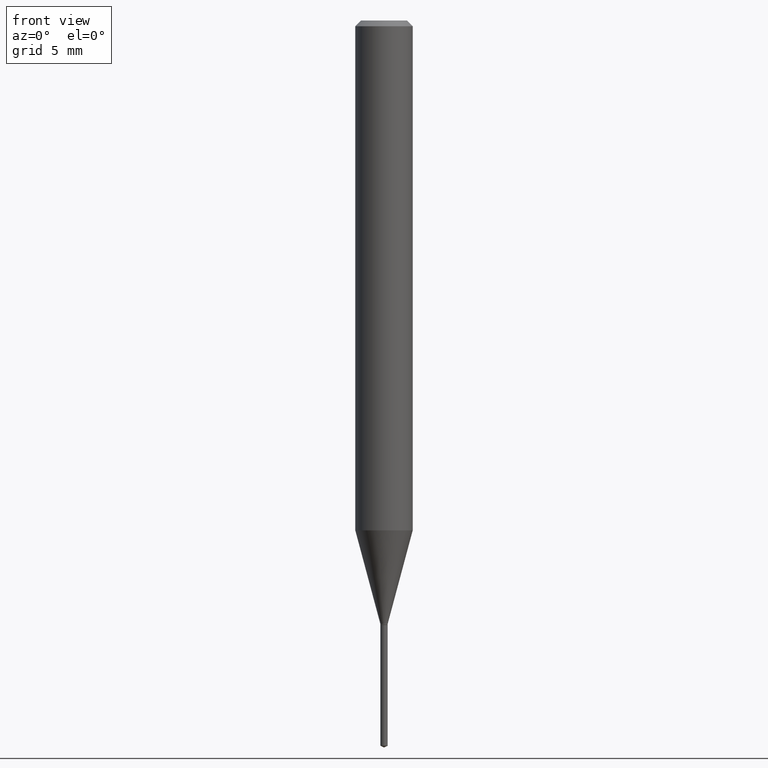
[diagram: clean part render]
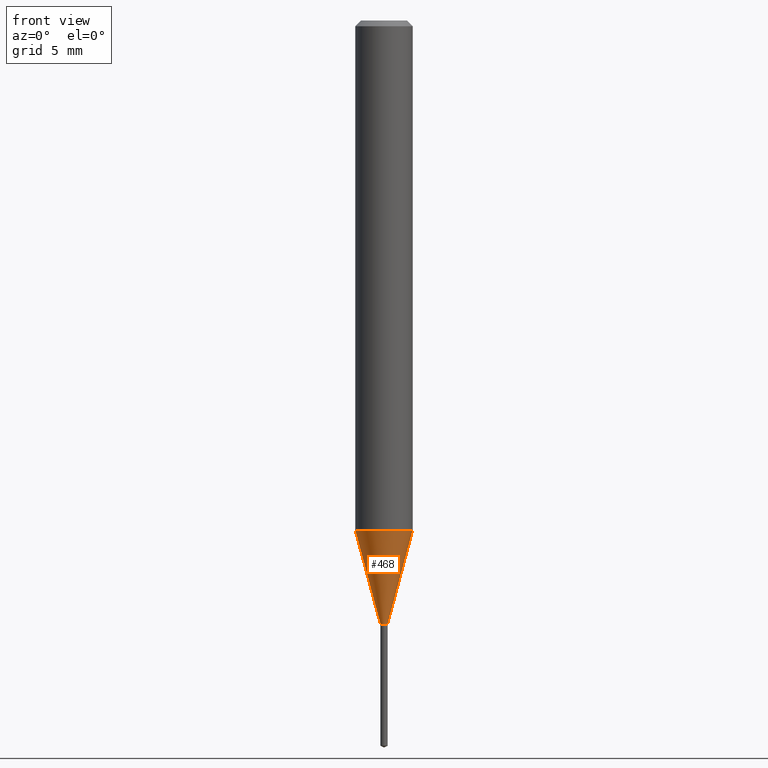
[diagram: same view with one face highlighted and labeled with its STEP entity id]
A machine part, front view. The second image highlights one B-rep face of the part: STEP entity #468.
In plain terms, the highlighted conical surface has half-angle 15 deg.
Its self-contained STEP definition (entity closure, byte-faithful):
#6 = DIRECTION ( 'NONE',  ( 1.000000000000000000, -6.982962677686266711E-15, 0.000000000000000000 ) ) ;
#31 = VERTEX_POINT ( 'NONE', #268 ) ;
#43 = DIRECTION ( 'NONE',  ( 1.000000000000000000, -6.982962677686205968E-15, 0.000000000000000000 ) ) ;
#48 = VERTEX_POINT ( 'NONE', #371 ) ;
#51 = ORIENTED_EDGE ( 'NONE', *, *, #65, .F. ) ;
#54 = AXIS2_PLACEMENT_3D ( 'NONE', #474, #281, #43 ) ;
#60 = VECTOR ( 'NONE', #435, 39.37007874015748854 ) ;
#65 = EDGE_CURVE ( 'NONE', #472, #31, #422, .T. ) ;
#70 = DIRECTION ( 'NONE',  ( -2.445468806185136597E-29, 3.491481338843145583E-15, 1.000000000000000000 ) ) ;
#78 = FACE_OUTER_BOUND ( 'NONE', #159, .T. ) ;
#92 = DIRECTION ( 'NONE',  ( 0.2588190451025212391, 1.565188264969622362E-15, 0.9659258262890679791 ) ) ;
#93 = EDGE_CURVE ( 'NONE', #480, #472, #120, .T. ) ;
#117 = CIRCLE ( 'NONE', #54, 0.007499999999999997120 ) ;
#120 = LINE ( 'NONE', #195, #60 ) ;
#151 = LINE ( 'NONE', #392, #265 ) ;
#155 = AXIS2_PLACEMENT_3D ( 'NONE', #250, #285, #241 ) ;
#159 = EDGE_LOOP ( 'NONE', ( #242, #328, #238, #51 ) ) ;
#160 = AXIS2_PLACEMENT_3D ( 'NONE', #245, #70, #6 ) ;
#195 = CARTESIAN_POINT ( 'NONE',  ( -0.007499999999999997120, -4.282430821393410279E-15, -1.241799999999999793 ) ) ;
#201 = EDGE_CURVE ( 'NONE', #48, #31, #151, .T. ) ;
#238 = ORIENTED_EDGE ( 'NONE', *, *, #201, .T. ) ;
#241 = DIRECTION ( 'NONE',  ( 1.000000000000000000, -6.982962677686205968E-15, 0.000000000000000000 ) ) ;
#242 = ORIENTED_EDGE ( 'NONE', *, *, #93, .F. ) ;
#245 = CARTESIAN_POINT ( 'NONE',  ( 2.566306220429153348E-29, -3.664005141150482080E-15, -1.049412780869824147 ) ) ;
#250 = CARTESIAN_POINT ( 'NONE',  ( 3.036783163520702277E-29, -4.335721526575417446E-15, -1.241799999999999793 ) ) ;
#265 = VECTOR ( 'NONE', #92, 39.37007874015748854 ) ;
#268 = CARTESIAN_POINT ( 'NONE',  ( 0.05905000000000011628, -4.076349087267857001E-15, -1.049412780869824147 ) ) ;
#281 = DIRECTION ( 'NONE',  ( -2.445468806185136597E-29, 3.491481338843145583E-15, 1.000000000000000000 ) ) ;
#285 = DIRECTION ( 'NONE',  ( -2.445468806185136597E-29, 3.491481338843145583E-15, 1.000000000000000000 ) ) ;
#316 = CARTESIAN_POINT ( 'NONE',  ( -0.05905000000000011628, -3.244429655684142193E-15, -1.049412780869824147 ) ) ;
#328 = ORIENTED_EDGE ( 'NONE', *, *, #423, .T. ) ;
#371 = CARTESIAN_POINT ( 'NONE',  ( 0.007499999999999997120, -4.388093746658064131E-15, -1.241799999999999793 ) ) ;
#392 = CARTESIAN_POINT ( 'NONE',  ( 0.007499999999999997120, -4.388093746658064131E-15, -1.241799999999999793 ) ) ;
#422 = CIRCLE ( 'NONE', #160, 0.05905000000000011628 ) ;
#423 = EDGE_CURVE ( 'NONE', #480, #48, #117, .T. ) ;
#424 = CARTESIAN_POINT ( 'NONE',  ( -0.007499999999999997120, -4.285573154598369775E-15, -1.241799999999999793 ) ) ;
#435 = DIRECTION ( 'NONE',  ( -0.2588190451025212391, 5.211531920934549464E-15, 0.9659258262890679791 ) ) ;
#460 = CONICAL_SURFACE ( 'NONE', #155, 0.007499999999999997120, 0.2617993877991499629 ) ;
#468 = ADVANCED_FACE ( 'NONE', ( #78 ), #460, .T. ) ;
#472 = VERTEX_POINT ( 'NONE', #316 ) ;
#474 = CARTESIAN_POINT ( 'NONE',  ( 3.036783163520702277E-29, -4.335721526575417446E-15, -1.241799999999999793 ) ) ;
#480 = VERTEX_POINT ( 'NONE', #424 ) ;